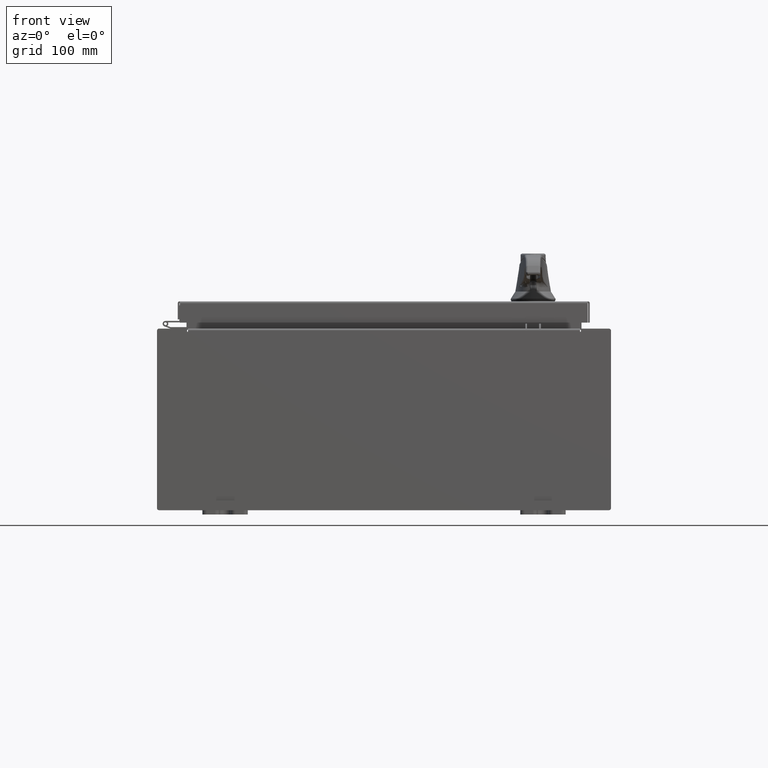
[diagram: clean part render]
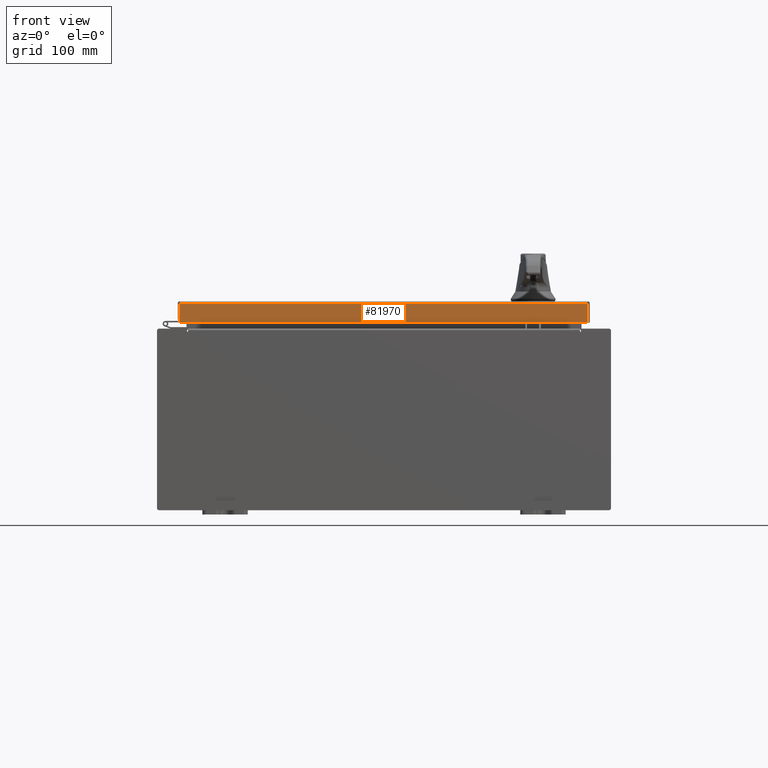
[diagram: same view with one face highlighted and labeled with its STEP entity id]
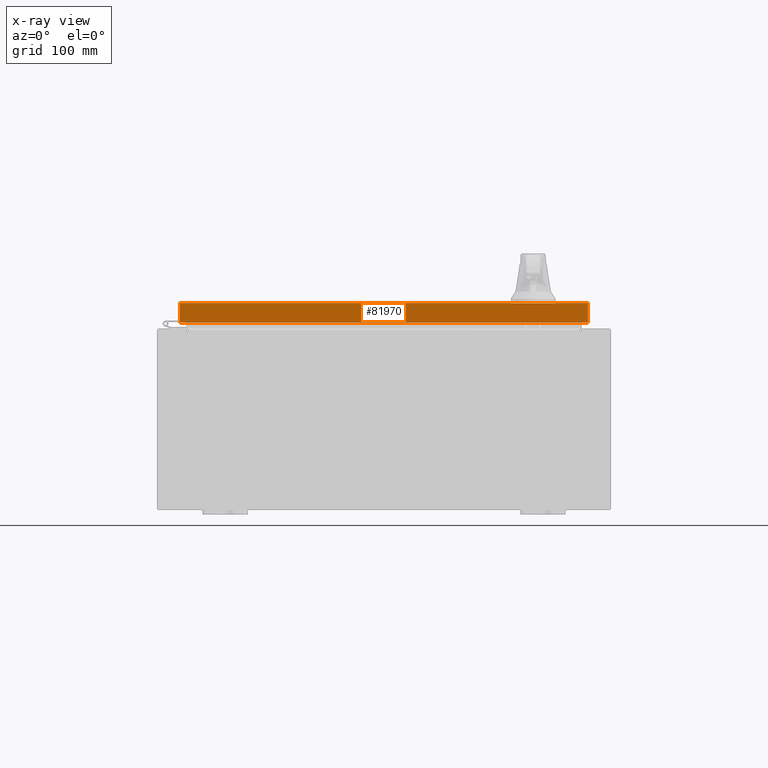
[diagram: x-ray of the same camera — body ghosted, the highlighted face saturated]
A machine part, front view. The second image highlights one B-rep face of the part: STEP entity #81970.
The next image is the same camera in x-ray: the body ghosted, the highlighted face saturated — about 0% of this face is hidden behind the body in this view.
In plain terms, the highlighted planar face has unit normal (-0, 1, -0).
Its self-contained STEP definition (entity closure, byte-faithful):
#257 = LINE ( 'NONE', #51694, #67538 ) ;
#1104 = DIRECTION ( 'NONE',  ( -1.000000000000000000, -8.758115402030108600E-047, 1.203722403024570700E-016 ) ) ;
#1841 = CARTESIAN_POINT ( 'NONE',  ( 9.077999999999999400, -9.093999999999999400, -0.08769999999999997200 ) ) ;
#5035 = CARTESIAN_POINT ( 'NONE',  ( 8.989157864376268800, -9.093999999999999400, -0.07469999999999972500 ) ) ;
#8099 = EDGE_CURVE ( 'NONE', #102150, #25148, #35209, .T. ) ;
#8529 = VECTOR ( 'NONE', #35455, 39.37007874015748100 ) ;
#8782 = VERTEX_POINT ( 'NONE', #54197 ) ;
#19117 = ORIENTED_EDGE ( 'NONE', *, *, #8099, .F. ) ;
#22010 = DIRECTION ( 'NONE',  ( -0.0000000000000000000, -3.798629886902798700E-015, -1.000000000000000000 ) ) ;
#24684 = EDGE_CURVE ( 'NONE', #62531, #102150, #81114, .T. ) ;
#25148 = VERTEX_POINT ( 'NONE', #33872 ) ;
#26719 = DIRECTION ( 'NONE',  ( 0.0000000000000000000, -3.798629886902798700E-015, -1.000000000000000000 ) ) ;
#27427 = ORIENTED_EDGE ( 'NONE', *, *, #69270, .F. ) ;
#29214 = CARTESIAN_POINT ( 'NONE',  ( -8.989157864376267100, -9.093999999999999400, -0.08769999999999997200 ) ) ;
#31402 = EDGE_LOOP ( 'NONE', ( #40230, #95382, #27427, #19117 ) ) ;
#33277 = CARTESIAN_POINT ( 'NONE',  ( 4.158227767516469000E-030, -9.093999999999999400, 3.480555384750563700E-014 ) ) ;
#33811 = VECTOR ( 'NONE', #26719, 39.37007874015748100 ) ;
#33872 = CARTESIAN_POINT ( 'NONE',  ( 8.989157864376268800, -9.094000000000003000, -0.9376999999999997600 ) ) ;
#35209 = LINE ( 'NONE', #5035, #77360 ) ;
#35455 = DIRECTION ( 'NONE',  ( 1.000000000000000000, 4.572495895663590700E-031, -1.754005138259407700E-045 ) ) ;
#37888 = CARTESIAN_POINT ( 'NONE',  ( 8.989157864376268800, -9.093999999999999400, -0.08769999999999997200 ) ) ;
#40230 = ORIENTED_EDGE ( 'NONE', *, *, #24684, .F. ) ;
#41869 = AXIS2_PLACEMENT_3D ( 'NONE', #33277, #109189, #58696 ) ;
#50262 = PLANE ( 'NONE',  #41869 ) ;
#51694 = CARTESIAN_POINT ( 'NONE',  ( 9.077999999999999400, -9.094000000000003000, -0.9376999999999997600 ) ) ;
#54197 = CARTESIAN_POINT ( 'NONE',  ( -8.989157864376267100, -9.094000000000003000, -0.9376999999999976500 ) ) ;
#58696 = DIRECTION ( 'NONE',  ( 0.0000000000000000000, 3.798629886902798700E-015, 1.000000000000000000 ) ) ;
#62531 = VERTEX_POINT ( 'NONE', #29214 ) ;
#64773 = EDGE_CURVE ( 'NONE', #62531, #8782, #98460, .T. ) ;
#67538 = VECTOR ( 'NONE', #1104, 39.37007874015748100 ) ;
#69270 = EDGE_CURVE ( 'NONE', #25148, #8782, #257, .T. ) ;
#77360 = VECTOR ( 'NONE', #22010, 39.37007874015748100 ) ;
#81114 = LINE ( 'NONE', #1841, #8529 ) ;
#81970 = ADVANCED_FACE ( 'NONE', ( #105689 ), #50262, .F. ) ;
#94197 = CARTESIAN_POINT ( 'NONE',  ( -8.989157864376267100, -9.093999999999999400, 3.480555384750563700E-014 ) ) ;
#95382 = ORIENTED_EDGE ( 'NONE', *, *, #64773, .T. ) ;
#98460 = LINE ( 'NONE', #94197, #33811 ) ;
#102150 = VERTEX_POINT ( 'NONE', #37888 ) ;
#105689 = FACE_OUTER_BOUND ( 'NONE', #31402, .T. ) ;
#109189 = DIRECTION ( 'NONE',  ( -4.572495895663590700E-031, 1.000000000000000000, -3.798629886902798700E-015 ) ) ;